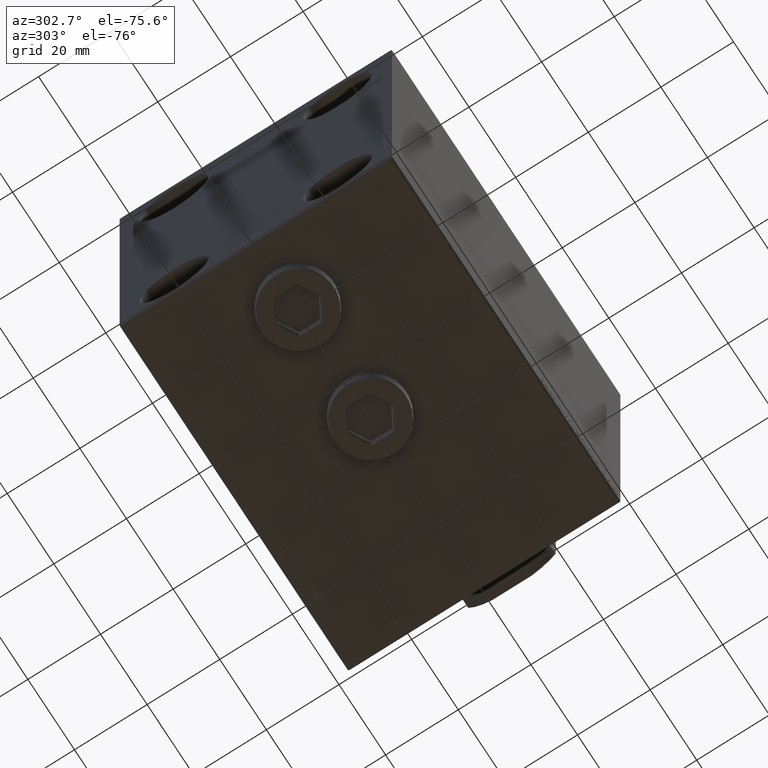
[diagram: clean part render]
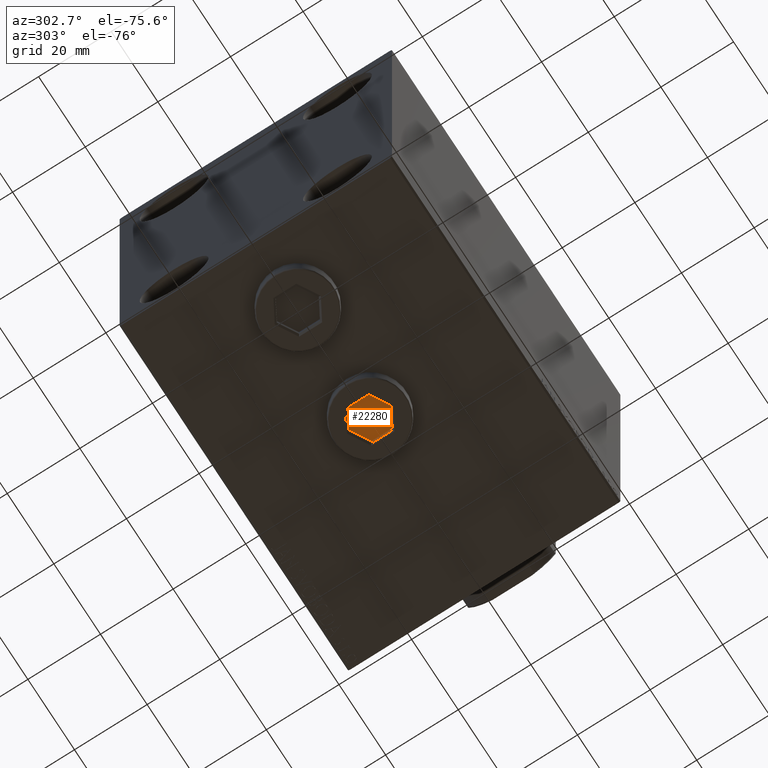
[diagram: same view with one face highlighted and labeled with its STEP entity id]
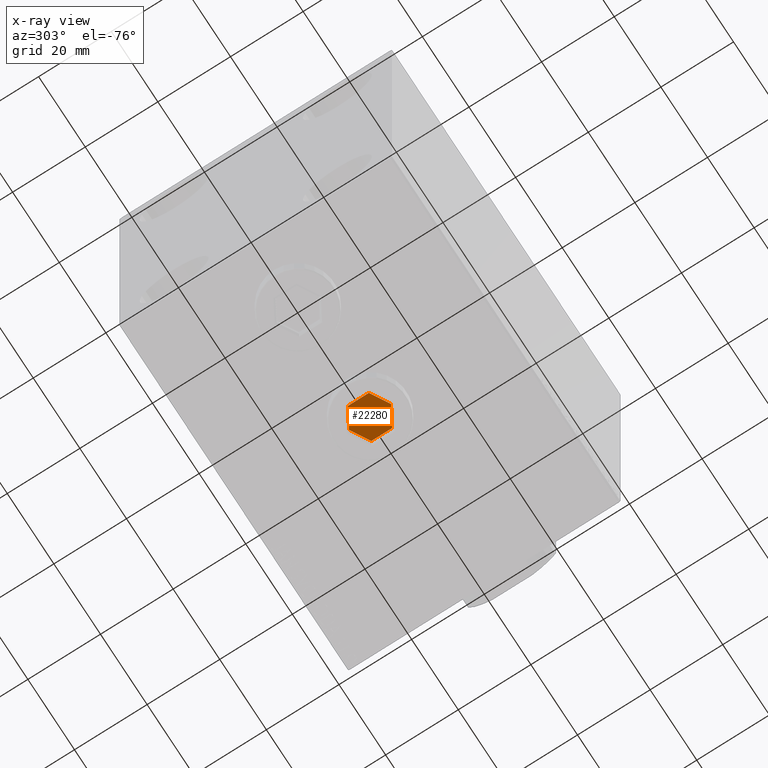
[diagram: x-ray of the same camera — body ghosted, the highlighted face saturated]
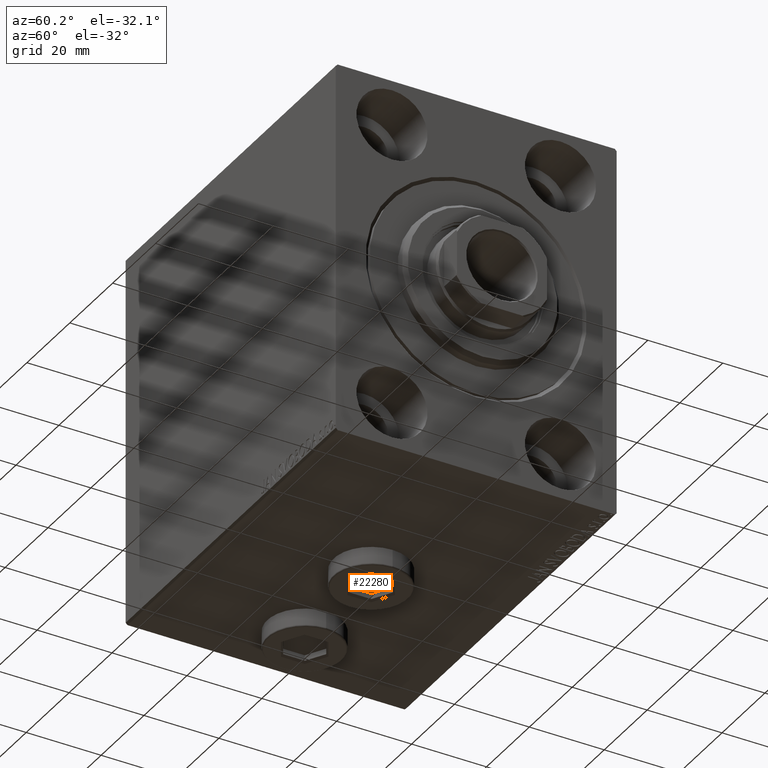
[diagram: same view with one face highlighted and labeled with its STEP entity id]
A machine part, auxiliary view. The second image highlights one B-rep face of the part: STEP entity #22280.
The next image is the same camera in x-ray: the body ghosted, the highlighted face saturated — about 0% of this face is hidden behind the body in this view.
A second angle (auxiliary view) of the same face is appended — the face is thin or edge-on in the first view.
In plain terms, the highlighted planar face has unit normal (0, 0, -1).
Its self-contained STEP definition (entity closure, byte-faithful):
#1590 = FACE_OUTER_BOUND ( 'NONE', #6993, .T. ) ;
#2965 = AXIS2_PLACEMENT_3D ( 'NONE', #22940, #37121, #8314 ) ;
#3374 = CARTESIAN_POINT ( 'NONE',  ( 8.983544101437179964E-17, -5.773502691896258199, 3.000000000000000000 ) ) ;
#5592 = ORIENTED_EDGE ( 'NONE', *, *, #18302, .T. ) ;
#6410 = CARTESIAN_POINT ( 'NONE',  ( -5.000000000000000888, 2.886751345948129099, 3.000000000000000000 ) ) ;
#6594 = VERTEX_POINT ( 'NONE', #27370 ) ;
#6601 = VERTEX_POINT ( 'NONE', #23642 ) ;
#6860 = VERTEX_POINT ( 'NONE', #3374 ) ;
#6993 = EDGE_LOOP ( 'NONE', ( #20701, #44092, #42073, #5592, #18475, #24059 ) ) ;
#8211 = CARTESIAN_POINT ( 'NONE',  ( -5.000000000000000888, 2.886751345948129099, 3.000000000000000000 ) ) ;
#8314 = DIRECTION ( 'NONE',  ( 1.000000000000000000, 0.000000000000000000, -0.000000000000000000 ) ) ;
#9772 = DIRECTION ( 'NONE',  ( -0.8660254037844387076, -0.4999999999999998335, 0.000000000000000000 ) ) ;
#9953 = VERTEX_POINT ( 'NONE', #8211 ) ;
#10623 = EDGE_CURVE ( 'NONE', #6601, #37791, #33082, .T. ) ;
#10702 = VECTOR ( 'NONE', #9772, 1000.000000000000114 ) ;
#13229 = DIRECTION ( 'NONE',  ( -3.004629197474316583E-16, 1.000000000000000000, 0.000000000000000000 ) ) ;
#13453 = EDGE_CURVE ( 'NONE', #9953, #6594, #20808, .T. ) ;
#15591 = DIRECTION ( 'NONE',  ( 0.8660254037844387076, 0.4999999999999999445, 0.000000000000000000 ) ) ;
#16825 = VECTOR ( 'NONE', #13229, 1000.000000000000000 ) ;
#18302 = EDGE_CURVE ( 'NONE', #6594, #6860, #29241, .T. ) ;
#18475 = ORIENTED_EDGE ( 'NONE', *, *, #31051, .T. ) ;
#19148 = CARTESIAN_POINT ( 'NONE',  ( 4.999999999999999112, -2.886751345948129988, 3.000000000000000000 ) ) ;
#19542 = CARTESIAN_POINT ( 'NONE',  ( 0.000000000000000000, 5.773502691896257311, 3.000000000000000000 ) ) ;
#19740 = CARTESIAN_POINT ( 'NONE',  ( 8.983544101437179964E-17, -5.773502691896258199, 3.000000000000000000 ) ) ;
#19884 = PLANE ( 'NONE',  #2965 ) ;
#20701 = ORIENTED_EDGE ( 'NONE', *, *, #10623, .T. ) ;
#20808 = LINE ( 'NONE', #6410, #42828 ) ;
#22280 = ADVANCED_FACE ( 'NONE', ( #1590 ), #19884, .T. ) ;
#22940 = CARTESIAN_POINT ( 'NONE',  ( 0.000000000000000000, 0.000000000000000000, 3.000000000000000000 ) ) ;
#23037 = LINE ( 'NONE', #19542, #10702 ) ;
#23044 = CARTESIAN_POINT ( 'NONE',  ( 0.000000000000000000, 5.773502691896257311, 3.000000000000000000 ) ) ;
#23642 = CARTESIAN_POINT ( 'NONE',  ( 4.999999999999997335, 2.886751345948131764, 3.000000000000000000 ) ) ;
#24059 = ORIENTED_EDGE ( 'NONE', *, *, #39415, .T. ) ;
#26787 = DIRECTION ( 'NONE',  ( -0.8660254037844388186, 0.4999999999999997780, 0.000000000000000000 ) ) ;
#27370 = CARTESIAN_POINT ( 'NONE',  ( -4.999999999999999112, -2.886751345948130432, 3.000000000000000000 ) ) ;
#27729 = VERTEX_POINT ( 'NONE', #19148 ) ;
#28739 = VECTOR ( 'NONE', #26787, 1000.000000000000114 ) ;
#29241 = LINE ( 'NONE', #43440, #36223 ) ;
#30155 = DIRECTION ( 'NONE',  ( 0.8660254037844387076, -0.4999999999999998890, 0.000000000000000000 ) ) ;
#31051 = EDGE_CURVE ( 'NONE', #6860, #27729, #37415, .T. ) ;
#32194 = DIRECTION ( 'NONE',  ( 3.004629197474318063E-16, -1.000000000000000000, 0.000000000000000000 ) ) ;
#33082 = LINE ( 'NONE', #36794, #28739 ) ;
#36223 = VECTOR ( 'NONE', #30155, 1000.000000000000114 ) ;
#36489 = VECTOR ( 'NONE', #15591, 999.9999999999998863 ) ;
#36794 = CARTESIAN_POINT ( 'NONE',  ( 4.999999999999997335, 2.886751345948131764, 3.000000000000000000 ) ) ;
#36994 = EDGE_CURVE ( 'NONE', #37791, #9953, #23037, .T. ) ;
#37121 = DIRECTION ( 'NONE',  ( 0.000000000000000000, 0.000000000000000000, 1.000000000000000000 ) ) ;
#37415 = LINE ( 'NONE', #19740, #36489 ) ;
#37791 = VERTEX_POINT ( 'NONE', #23044 ) ;
#39415 = EDGE_CURVE ( 'NONE', #27729, #6601, #45089, .T. ) ;
#42073 = ORIENTED_EDGE ( 'NONE', *, *, #13453, .T. ) ;
#42828 = VECTOR ( 'NONE', #32194, 1000.000000000000000 ) ;
#43440 = CARTESIAN_POINT ( 'NONE',  ( -4.999999999999999112, -2.886751345948130432, 3.000000000000000000 ) ) ;
#44092 = ORIENTED_EDGE ( 'NONE', *, *, #36994, .T. ) ;
#45089 = LINE ( 'NONE', #45316, #16825 ) ;
#45316 = CARTESIAN_POINT ( 'NONE',  ( 4.999999999999999112, -2.886751345948129988, 3.000000000000000000 ) ) ;